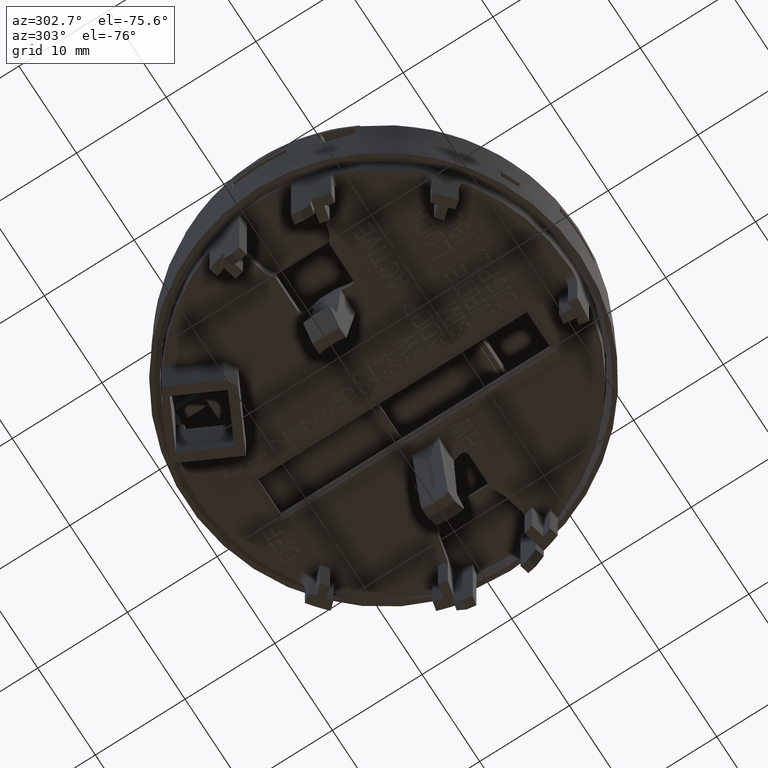
[diagram: clean part render]
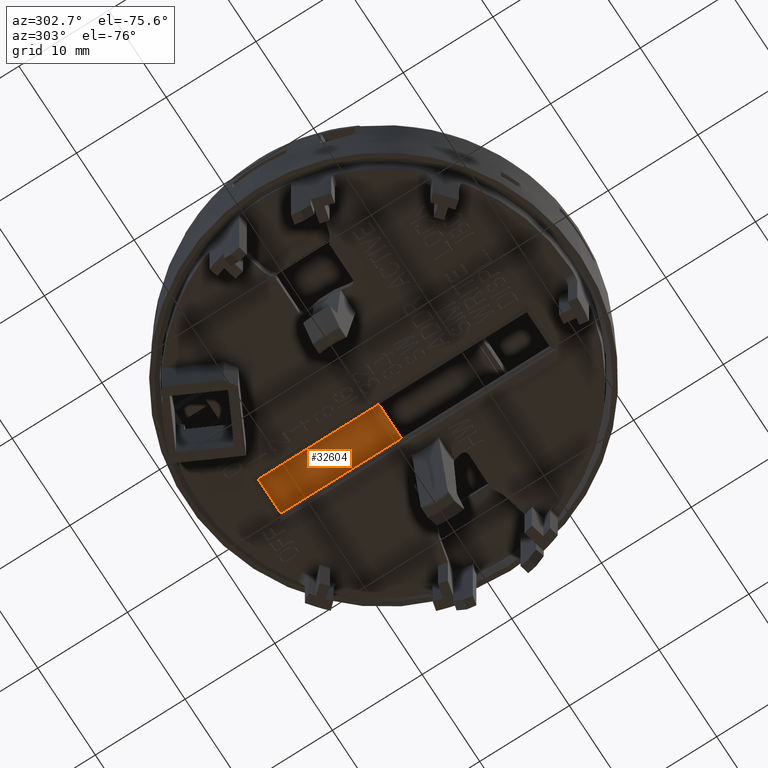
[diagram: same view with one face highlighted and labeled with its STEP entity id]
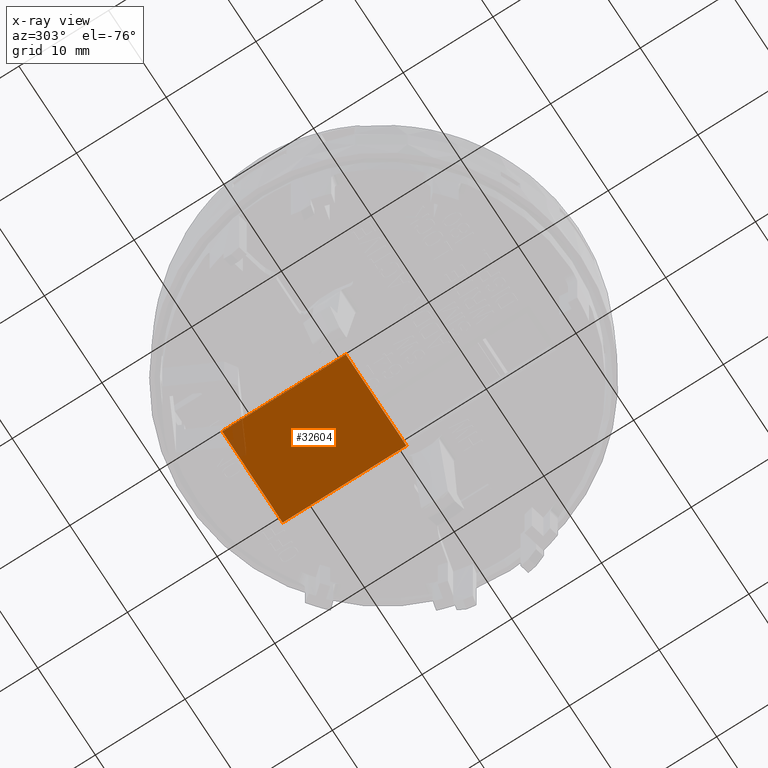
[diagram: x-ray of the same camera — body ghosted, the highlighted face saturated]
A machine part, auxiliary view. The second image highlights one B-rep face of the part: STEP entity #32604.
The next image is the same camera in x-ray: the body ghosted, the highlighted face saturated — about 3% of this face is hidden behind the body in this view.
In plain terms, the highlighted planar face has unit normal (0, 0, -1).
Its self-contained STEP definition (entity closure, byte-faithful):
#668 = VERTEX_POINT ( 'NONE', #42116 ) ;
#713 = AXIS2_PLACEMENT_3D ( 'NONE', #61332, #50307, #9312 ) ;
#4103 = EDGE_LOOP ( 'NONE', ( #23986, #41952, #30309, #52492 ) ) ;
#8598 = EDGE_CURVE ( 'NONE', #45354, #668, #23473, .T. ) ;
#9312 = DIRECTION ( 'NONE',  ( 0.000000000000000000, -1.000000000000000000, 0.000000000000000000 ) ) ;
#17448 = LINE ( 'NONE', #30116, #27882 ) ;
#21047 = LINE ( 'NONE', #48082, #42039 ) ;
#23473 = LINE ( 'NONE', #23820, #64110 ) ;
#23820 = CARTESIAN_POINT ( 'NONE',  ( 0.1771653543307086520, 0.6139669985787402640, -0.07824803149606300579 ) ) ;
#23986 = ORIENTED_EDGE ( 'NONE', *, *, #8598, .T. ) ;
#25139 = DIRECTION ( 'NONE',  ( -0.000000000000000000, -1.000000000000000000, -0.000000000000000000 ) ) ;
#27882 = VECTOR ( 'NONE', #25139, 39.37007874015748143 ) ;
#28607 = PLANE ( 'NONE',  #713 ) ;
#30116 = CARTESIAN_POINT ( 'NONE',  ( 0.1771653543307086520, 0.000000000000000000, -0.07824803149606300579 ) ) ;
#30309 = ORIENTED_EDGE ( 'NONE', *, *, #57645, .T. ) ;
#32604 = ADVANCED_FACE ( 'NONE', ( #36663 ), #28607, .T. ) ;
#35479 = VECTOR ( 'NONE', #50348, 39.37007874015748143 ) ;
#35681 = VERTEX_POINT ( 'NONE', #59545 ) ;
#35800 = VERTEX_POINT ( 'NONE', #40315 ) ;
#36663 = FACE_OUTER_BOUND ( 'NONE', #4103, .T. ) ;
#40315 = CARTESIAN_POINT ( 'NONE',  ( -0.2362204724409449064, 0.07086614173228346358, -0.07824803149606300579 ) ) ;
#41502 = EDGE_CURVE ( 'NONE', #45354, #35800, #56738, .T. ) ;
#41952 = ORIENTED_EDGE ( 'NONE', *, *, #68611, .T. ) ;
#42039 = VECTOR ( 'NONE', #55050, 39.37007874015748143 ) ;
#42116 = CARTESIAN_POINT ( 'NONE',  ( 0.1771653543307086520, 0.6139669985787402640, -0.07824803149606300579 ) ) ;
#43828 = CARTESIAN_POINT ( 'NONE',  ( -0.2362204724409449064, 0.6139669985787402640, -0.07824803149606300579 ) ) ;
#45168 = DIRECTION ( 'NONE',  ( 1.000000000000000000, -0.000000000000000000, -0.000000000000000000 ) ) ;
#45354 = VERTEX_POINT ( 'NONE', #43828 ) ;
#45380 = CARTESIAN_POINT ( 'NONE',  ( -0.2362204724409449064, 0.000000000000000000, -0.07824803149606300579 ) ) ;
#48082 = CARTESIAN_POINT ( 'NONE',  ( 0.1771653543307086520, 0.07086614173228346358, -0.07824803149606300579 ) ) ;
#50307 = DIRECTION ( 'NONE',  ( 0.000000000000000000, 0.000000000000000000, -1.000000000000000000 ) ) ;
#50348 = DIRECTION ( 'NONE',  ( -0.000000000000000000, -1.000000000000000000, -0.000000000000000000 ) ) ;
#52492 = ORIENTED_EDGE ( 'NONE', *, *, #41502, .F. ) ;
#55050 = DIRECTION ( 'NONE',  ( -1.000000000000000000, 0.000000000000000000, 0.000000000000000000 ) ) ;
#56738 = LINE ( 'NONE', #45380, #35479 ) ;
#57645 = EDGE_CURVE ( 'NONE', #35681, #35800, #21047, .T. ) ;
#59545 = CARTESIAN_POINT ( 'NONE',  ( 0.1771653543307086520, 0.07086614173228346358, -0.07824803149606300579 ) ) ;
#61332 = CARTESIAN_POINT ( 'NONE',  ( 0.1771653543307086520, 0.6139669985787402640, -0.07824803149606300579 ) ) ;
#64110 = VECTOR ( 'NONE', #45168, 39.37007874015748143 ) ;
#68611 = EDGE_CURVE ( 'NONE', #668, #35681, #17448, .T. ) ;